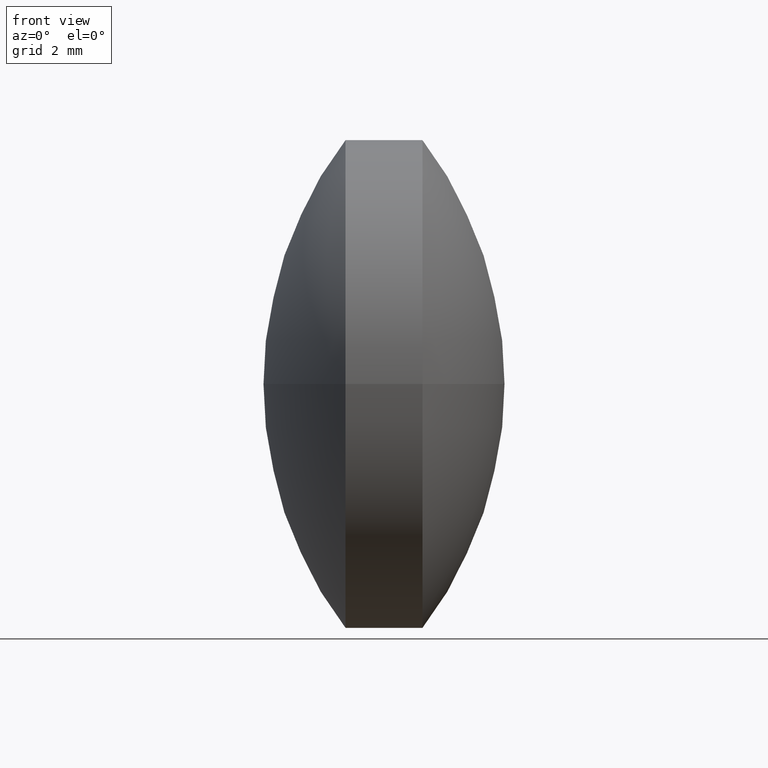
[diagram: clean part render]
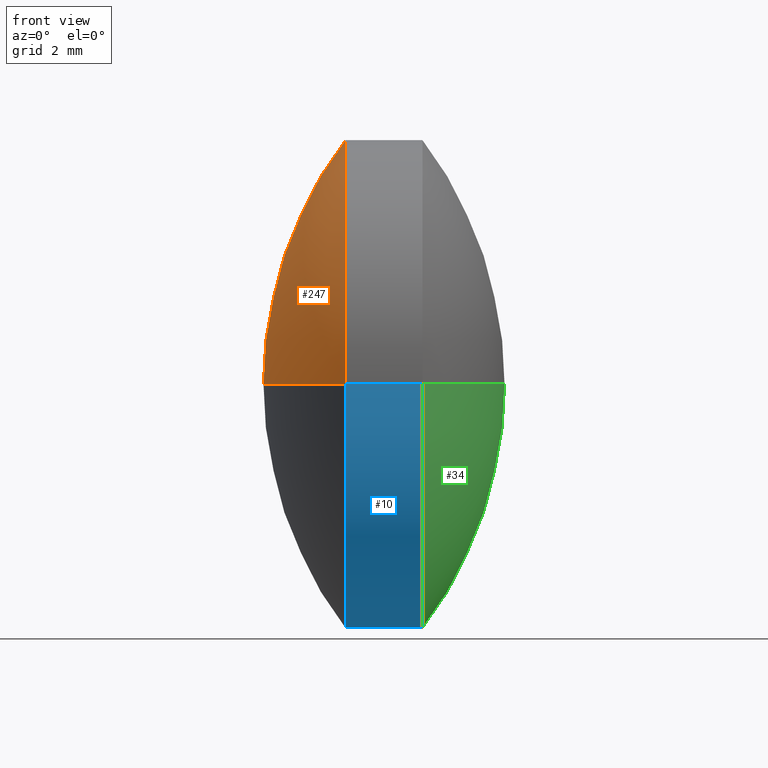
[diagram: same view with three faces highlighted in distinct colors, each labeled with its STEP entity id]
A machine part, front view with three faces highlighted in distinct colors.
Their STEP definitions:

[orange] entity #247 — the highlighted spherical surface has radius 10.5319 mm.
#19 = SPHERICAL_SURFACE ( 'NONE', #172, 10.53191963756298900 ) ;
#23 = CARTESIAN_POINT ( 'NONE',  ( 50.63137366775140400, 24.30805651159238700, 0.0000000000000000000 ) ) ;
#24 = EDGE_CURVE ( 'NONE', #27, #64, #136, .T. ) ;
#27 = VERTEX_POINT ( 'NONE', #210 ) ;
#47 = ORIENTED_EDGE ( 'NONE', *, *, #24, .T. ) ;
#53 = CARTESIAN_POINT ( 'NONE',  ( 42.22906260161697400, 17.95805651159240000, -7.776507174585683300E-016 ) ) ;
#54 = DIRECTION ( 'NONE',  ( 0.0000000000000000000, 1.000000000000000000, 1.224646799147353200E-016 ) ) ;
#64 = VERTEX_POINT ( 'NONE', #237 ) ;
#74 = CARTESIAN_POINT ( 'NONE',  ( 50.63137366775140400, 24.30805651159238700, 0.0000000000000000000 ) ) ;
#79 = FACE_OUTER_BOUND ( 'NONE', #218, .T. ) ;
#98 = DIRECTION ( 'NONE',  ( -1.092739197465706300E-015, -1.000000000000000000, 0.0000000000000000000 ) ) ;
#99 = DIRECTION ( 'NONE',  ( 8.609878887047754700E-032, 1.224646799147353200E-016, -1.000000000000000000 ) ) ;
#102 = AXIS2_PLACEMENT_3D ( 'NONE', #23, #234, #208 ) ;
#111 = AXIS2_PLACEMENT_3D ( 'NONE', #166, #262, #98 ) ;
#121 = DIRECTION ( 'NONE',  ( 6.588441749174644500E-016, 1.000000000000000000, 0.0000000000000000000 ) ) ;
#136 = CIRCLE ( 'NONE', #102, 10.53191963756298900 ) ;
#140 = CIRCLE ( 'NONE', #111, 6.349999999999994300 ) ;
#154 = ORIENTED_EDGE ( 'NONE', *, *, #236, .T. ) ;
#166 = CARTESIAN_POINT ( 'NONE',  ( 42.22906260161697400, 24.30805651159239400, 0.0000000000000000000 ) ) ;
#172 = AXIS2_PLACEMENT_3D ( 'NONE', #217, #243, #121 ) ;
#173 = EDGE_CURVE ( 'NONE', #235, #64, #209, .T. ) ;
#191 = ORIENTED_EDGE ( 'NONE', *, *, #173, .F. ) ;
#208 = DIRECTION ( 'NONE',  ( 1.000000000000000000, 0.0000000000000000000, 0.0000000000000000000 ) ) ;
#209 = CIRCLE ( 'NONE', #259, 10.53191963756298900 ) ;
#210 = CARTESIAN_POINT ( 'NONE',  ( 42.22906260161698100, 30.65805651159238800, 0.0000000000000000000 ) ) ;
#217 = CARTESIAN_POINT ( 'NONE',  ( 50.63137366775140400, 24.30805651159238700, 0.0000000000000000000 ) ) ;
#218 = EDGE_LOOP ( 'NONE', ( #191, #154, #47 ) ) ;
#234 = DIRECTION ( 'NONE',  ( 0.0000000000000000000, 0.0000000000000000000, 1.000000000000000000 ) ) ;
#235 = VERTEX_POINT ( 'NONE', #53 ) ;
#236 = EDGE_CURVE ( 'NONE', #235, #27, #140, .T. ) ;
#237 = CARTESIAN_POINT ( 'NONE',  ( 40.09945403018841100, 24.30805651159239400, 0.0000000000000000000 ) ) ;
#243 = DIRECTION ( 'NONE',  ( 0.0000000000000000000, 0.0000000000000000000, -1.000000000000000000 ) ) ;
#247 = ADVANCED_FACE ( 'NONE', ( #79 ), #19, .T. ) ;
#259 = AXIS2_PLACEMENT_3D ( 'NONE', #74, #99, #54 ) ;
#262 = DIRECTION ( 'NONE',  ( -1.000000000000000000, 7.030499645320012300E-016, -0.0000000000000000000 ) ) ;

[blue] entity #10 — the highlighted cylindrical surface (partial cylindrical patch) has radius 6.35 mm, axis along (-1, 0, -0).
#1 = DIRECTION ( 'NONE',  ( -1.092739197465705700E-015, -1.000000000000000000, 0.0000000000000000000 ) ) ;
#3 = AXIS2_PLACEMENT_3D ( 'NONE', #51, #215, #181 ) ;
#4 = DIRECTION ( 'NONE',  ( -1.000000000000000000, 7.030499645320012300E-016, -0.0000000000000000000 ) ) ;
#9 = ORIENTED_EDGE ( 'NONE', *, *, #106, .T. ) ;
#10 = ADVANCED_FACE ( 'NONE', ( #239 ), #171, .T. ) ;
#27 = VERTEX_POINT ( 'NONE', #210 ) ;
#45 = DIRECTION ( 'NONE',  ( -1.092739197465705700E-015, -1.000000000000000000, 0.0000000000000000000 ) ) ;
#48 = DIRECTION ( 'NONE',  ( -1.000000000000000000, 7.030499645320012300E-016, -0.0000000000000000000 ) ) ;
#51 = CARTESIAN_POINT ( 'NONE',  ( 42.22906260161697400, 24.30805651159239400, 0.0000000000000000000 ) ) ;
#53 = CARTESIAN_POINT ( 'NONE',  ( 42.22906260161697400, 17.95805651159240000, -7.776507174585683300E-016 ) ) ;
#56 = ORIENTED_EDGE ( 'NONE', *, *, #126, .T. ) ;
#73 = CARTESIAN_POINT ( 'NONE',  ( 35.82682010691117100, 30.65805651159239500, 7.776507174585689200E-016 ) ) ;
#80 = CIRCLE ( 'NONE', #288, 6.349999999999997900 ) ;
#85 = AXIS2_PLACEMENT_3D ( 'NONE', #183, #48, #45 ) ;
#101 = ORIENTED_EDGE ( 'NONE', *, *, #148, .F. ) ;
#106 = EDGE_CURVE ( 'NONE', #293, #235, #185, .T. ) ;
#119 = CARTESIAN_POINT ( 'NONE',  ( 44.22913117304555200, 30.65805651159239200, 0.0000000000000000000 ) ) ;
#125 = VECTOR ( 'NONE', #184, 1000.000000000000000 ) ;
#126 = EDGE_CURVE ( 'NONE', #267, #293, #80, .T. ) ;
#134 = ORIENTED_EDGE ( 'NONE', *, *, #265, .F. ) ;
#143 = EDGE_LOOP ( 'NONE', ( #134, #56, #9, #101 ) ) ;
#144 = DIRECTION ( 'NONE',  ( -1.000000000000000000, 7.030499645320012300E-016, -0.0000000000000000000 ) ) ;
#148 = EDGE_CURVE ( 'NONE', #27, #235, #271, .T. ) ;
#171 = CYLINDRICAL_SURFACE ( 'NONE', #85, 6.349999999999997900 ) ;
#181 = DIRECTION ( 'NONE',  ( -1.092739197465706300E-015, -1.000000000000000000, 0.0000000000000000000 ) ) ;
#183 = CARTESIAN_POINT ( 'NONE',  ( 35.82682010691116400, 24.30805651159239700, 0.0000000000000000000 ) ) ;
#184 = DIRECTION ( 'NONE',  ( -1.000000000000000000, 7.030499645320012300E-016, -0.0000000000000000000 ) ) ;
#185 = LINE ( 'NONE', #305, #125 ) ;
#210 = CARTESIAN_POINT ( 'NONE',  ( 42.22906260161698100, 30.65805651159238800, 0.0000000000000000000 ) ) ;
#215 = DIRECTION ( 'NONE',  ( -1.000000000000000000, 7.030499645320012300E-016, -0.0000000000000000000 ) ) ;
#228 = VECTOR ( 'NONE', #4, 1000.000000000000000 ) ;
#235 = VERTEX_POINT ( 'NONE', #53 ) ;
#239 = FACE_OUTER_BOUND ( 'NONE', #143, .T. ) ;
#263 = CARTESIAN_POINT ( 'NONE',  ( 44.22913117304553800, 17.95805651159238900, -7.776507174585695100E-016 ) ) ;
#265 = EDGE_CURVE ( 'NONE', #267, #27, #272, .T. ) ;
#267 = VERTEX_POINT ( 'NONE', #119 ) ;
#271 = CIRCLE ( 'NONE', #3, 6.349999999999994300 ) ;
#272 = LINE ( 'NONE', #73, #228 ) ;
#285 = CARTESIAN_POINT ( 'NONE',  ( 44.22913117304554500, 24.30805651159239000, 0.0000000000000000000 ) ) ;
#288 = AXIS2_PLACEMENT_3D ( 'NONE', #285, #144, #1 ) ;
#293 = VERTEX_POINT ( 'NONE', #263 ) ;
#305 = CARTESIAN_POINT ( 'NONE',  ( 35.82682010691115700, 17.95805651159240000, 0.0000000000000000000 ) ) ;

[green] entity #34 — the highlighted spherical surface has radius 10.5319 mm.
#1 = DIRECTION ( 'NONE',  ( -1.092739197465705700E-015, -1.000000000000000000, 0.0000000000000000000 ) ) ;
#17 = CIRCLE ( 'NONE', #21, 10.53191963756296800 ) ;
#21 = AXIS2_PLACEMENT_3D ( 'NONE', #93, #116, #70 ) ;
#34 = ADVANCED_FACE ( 'NONE', ( #203 ), #66, .T. ) ;
#50 = CARTESIAN_POINT ( 'NONE',  ( 46.35873974447412800, 24.30805651159239000, 0.0000000000000000000 ) ) ;
#60 = EDGE_LOOP ( 'NONE', ( #282, #179, #252 ) ) ;
#66 = SPHERICAL_SURFACE ( 'NONE', #182, 10.53191963756296600 ) ;
#69 = CIRCLE ( 'NONE', #213, 10.53191963756296400 ) ;
#70 = DIRECTION ( 'NONE',  ( 1.000000000000000000, 0.0000000000000000000, 0.0000000000000000000 ) ) ;
#80 = CIRCLE ( 'NONE', #288, 6.349999999999997900 ) ;
#93 = CARTESIAN_POINT ( 'NONE',  ( 35.82682010691116400, 24.30805651159239700, 0.0000000000000000000 ) ) ;
#112 = EDGE_CURVE ( 'NONE', #133, #267, #17, .T. ) ;
#116 = DIRECTION ( 'NONE',  ( 0.0000000000000000000, 0.0000000000000000000, 1.000000000000000000 ) ) ;
#119 = CARTESIAN_POINT ( 'NONE',  ( 44.22913117304555200, 30.65805651159239200, 0.0000000000000000000 ) ) ;
#126 = EDGE_CURVE ( 'NONE', #267, #293, #80, .T. ) ;
#133 = VERTEX_POINT ( 'NONE', #50 ) ;
#138 = CARTESIAN_POINT ( 'NONE',  ( 35.82682010691116400, 24.30805651159239700, 0.0000000000000000000 ) ) ;
#144 = DIRECTION ( 'NONE',  ( -1.000000000000000000, 7.030499645320012300E-016, -0.0000000000000000000 ) ) ;
#179 = ORIENTED_EDGE ( 'NONE', *, *, #198, .T. ) ;
#182 = AXIS2_PLACEMENT_3D ( 'NONE', #138, #303, #256 ) ;
#187 = DIRECTION ( 'NONE',  ( 0.0000000000000000000, 1.000000000000000000, 1.224646799147353500E-016 ) ) ;
#198 = EDGE_CURVE ( 'NONE', #133, #293, #69, .T. ) ;
#203 = FACE_OUTER_BOUND ( 'NONE', #60, .T. ) ;
#213 = AXIS2_PLACEMENT_3D ( 'NONE', #286, #216, #187 ) ;
#216 = DIRECTION ( 'NONE',  ( 8.609878887047754700E-032, 1.224646799147353200E-016, -1.000000000000000000 ) ) ;
#252 = ORIENTED_EDGE ( 'NONE', *, *, #126, .F. ) ;
#256 = DIRECTION ( 'NONE',  ( 6.588441749174659300E-016, 1.000000000000000000, 0.0000000000000000000 ) ) ;
#263 = CARTESIAN_POINT ( 'NONE',  ( 44.22913117304553800, 17.95805651159238900, -7.776507174585695100E-016 ) ) ;
#267 = VERTEX_POINT ( 'NONE', #119 ) ;
#282 = ORIENTED_EDGE ( 'NONE', *, *, #112, .F. ) ;
#285 = CARTESIAN_POINT ( 'NONE',  ( 44.22913117304554500, 24.30805651159239000, 0.0000000000000000000 ) ) ;
#286 = CARTESIAN_POINT ( 'NONE',  ( 35.82682010691116400, 24.30805651159239700, 0.0000000000000000000 ) ) ;
#288 = AXIS2_PLACEMENT_3D ( 'NONE', #285, #144, #1 ) ;
#293 = VERTEX_POINT ( 'NONE', #263 ) ;
#303 = DIRECTION ( 'NONE',  ( 0.0000000000000000000, 0.0000000000000000000, -1.000000000000000000 ) ) ;